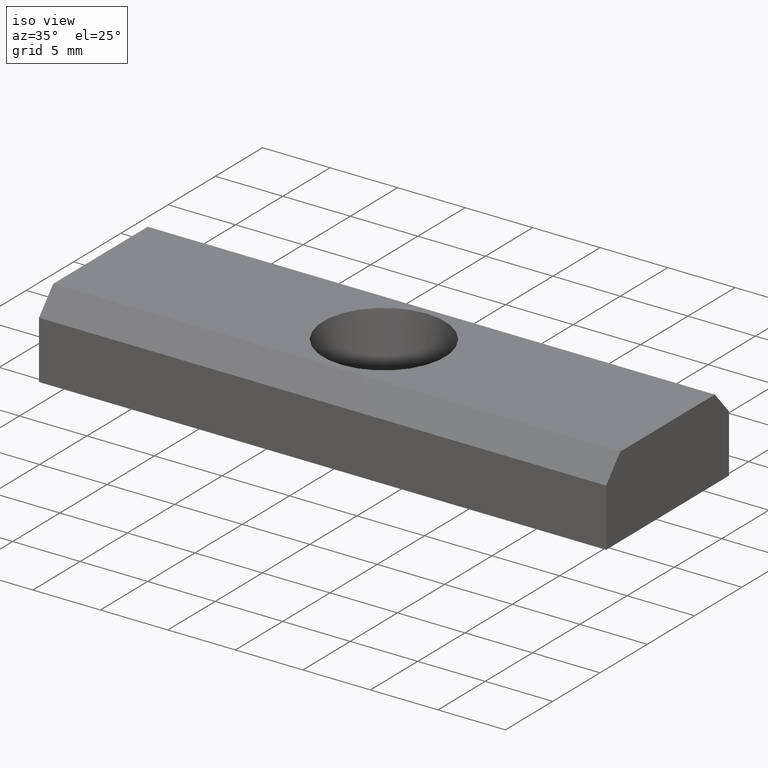
[diagram: clean part render]
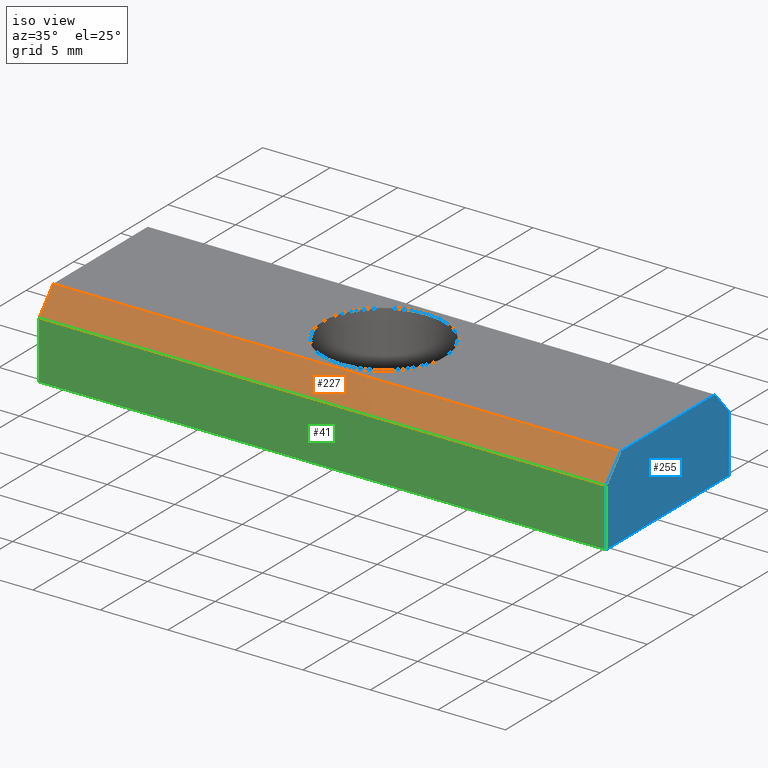
[diagram: same view with three faces highlighted in distinct colors, each labeled with its STEP entity id]
A machine part, iso view with three faces highlighted in distinct colors.
Their STEP definitions:

[orange] entity #227 — the highlighted planar face has unit normal (-0, -0.7498, 0.6616).
#7=CARTESIAN_POINT('',(-21.000000000084128,-6.499999999974079,4.299999999982900));
#8=VERTEX_POINT('',#7);
#25=CARTESIAN_POINT('',(20.999999999915872,-6.499999999974079,4.299999999982900));
#26=VERTEX_POINT('',#25);
#33=CARTESIAN_POINT('',(-21.000000000084128,-6.499999999974079,4.299999999982900));
#34=DIRECTION('',(1.0,0.0,0.0));
#35=VECTOR('',#34,42.0);
#36=LINE('',#33,#35);
#37=EDGE_CURVE('',#8,#26,#36,.T.);
#160=CARTESIAN_POINT('',(-21.000000000084128,-4.999999999979991,5.999999999975442));
#161=VERTEX_POINT('',#160);
#168=CARTESIAN_POINT('',(20.999999999915872,-4.999999999979991,5.999999999975442));
#169=VERTEX_POINT('',#168);
#170=CARTESIAN_POINT('',(-21.000000000084128,-4.999999999979991,5.999999999975442));
#171=DIRECTION('',(1.0,0.0,0.0));
#172=VECTOR('',#171,42.0);
#173=LINE('',#170,#172);
#174=EDGE_CURVE('',#161,#169,#173,.T.);
#206=CARTESIAN_POINT('',(-21.000000000084128,-4.999999999979991,5.999999999975442));
#207=DIRECTION('',(-4.051264E-017,-0.749837855365034,0.661621637086913));
#208=DIRECTION('',(4.591433E-017,-0.661621637086913,-0.749837855365034));
#209=AXIS2_PLACEMENT_3D('',#206,#207,#208);
#210=PLANE('',#209);
#211=CARTESIAN_POINT('',(-21.000000000084128,-4.999999999980083,5.999999999975621));
#212=DIRECTION('',(0.0,-0.661621637086851,-0.749837855365089));
#213=VECTOR('',#212,2.267156809741838);
#214=LINE('',#211,#213);
#215=EDGE_CURVE('',#161,#8,#214,.T.);
#216=ORIENTED_EDGE('',*,*,#215,.T.);
#217=ORIENTED_EDGE('',*,*,#37,.T.);
#218=CARTESIAN_POINT('',(20.999999999915872,-4.999999999980083,5.999999999975621));
#219=DIRECTION('',(0.0,-0.661621637086851,-0.749837855365089));
#220=VECTOR('',#219,2.267156809741838);
#221=LINE('',#218,#220);
#222=EDGE_CURVE('',#169,#26,#221,.T.);
#223=ORIENTED_EDGE('',*,*,#222,.F.);
#224=ORIENTED_EDGE('',*,*,#174,.F.);
#225=EDGE_LOOP('',(#216,#217,#223,#224));
#226=FACE_OUTER_BOUND('',#225,.T.);
#227=ADVANCED_FACE('',(#226),#210,.T.);

[blue] entity #255 — the highlighted planar face has unit normal (1, 0, 0).
#17=CARTESIAN_POINT('',(20.999999999915872,-6.499999999974079,-1.776357E-015));
#18=VERTEX_POINT('',#17);
#25=CARTESIAN_POINT('',(20.999999999915872,-6.499999999974079,4.299999999982900));
#26=VERTEX_POINT('',#25);
#27=CARTESIAN_POINT('',(20.999999999915872,-6.499999999974079,4.299999999982809));
#28=DIRECTION('',(0.0,0.0,-1.0));
#29=VECTOR('',#28,4.299999999982811);
#30=LINE('',#27,#29);
#31=EDGE_CURVE('',#26,#18,#30,.T.);
#55=CARTESIAN_POINT('',(20.999999999915872,6.499999999974079,-1.776357E-015));
#56=VERTEX_POINT('',#55);
#63=CARTESIAN_POINT('',(20.999999999915872,-6.499999999974079,-1.776357E-015));
#64=DIRECTION('',(0.0,1.0,0.0));
#65=VECTOR('',#64,12.999999999948013);
#66=LINE('',#63,#65);
#67=EDGE_CURVE('',#18,#56,#66,.T.);
#106=CARTESIAN_POINT('',(20.999999999915872,6.499999999974079,4.299999999982445));
#107=VERTEX_POINT('',#106);
#114=CARTESIAN_POINT('',(20.999999999915872,6.499999999974079,-1.776357E-015));
#115=DIRECTION('',(0.0,0.0,1.0));
#116=VECTOR('',#115,4.299999999982811);
#117=LINE('',#114,#116);
#118=EDGE_CURVE('',#56,#107,#117,.T.);
#137=CARTESIAN_POINT('',(20.999999999915872,4.999999999979991,5.999999999975897));
#138=VERTEX_POINT('',#137);
#145=CARTESIAN_POINT('',(20.999999999915872,6.499999999974079,4.299999999982445));
#146=DIRECTION('',(0.0,-0.661621637086846,0.749837855365093));
#147=VECTOR('',#146,2.267156809741826);
#148=LINE('',#145,#147);
#149=EDGE_CURVE('',#107,#138,#148,.T.);
#168=CARTESIAN_POINT('',(20.999999999915872,-4.999999999979991,5.999999999975442));
#169=VERTEX_POINT('',#168);
#176=CARTESIAN_POINT('',(20.999999999915872,4.999999999980011,5.999999999975897));
#177=DIRECTION('',(0.0,-1.0,0.0));
#178=VECTOR('',#177,9.999999999960002);
#179=LINE('',#176,#178);
#180=EDGE_CURVE('',#138,#169,#179,.T.);
#218=CARTESIAN_POINT('',(20.999999999915872,-4.999999999980083,5.999999999975621));
#219=DIRECTION('',(0.0,-0.661621637086851,-0.749837855365089));
#220=VECTOR('',#219,2.267156809741838);
#221=LINE('',#218,#220);
#222=EDGE_CURVE('',#169,#26,#221,.T.);
#242=CARTESIAN_POINT('',(20.999999999915872,-7.800004735117909,6.600004735154014));
#243=DIRECTION('',(1.0,0.0,0.0));
#244=DIRECTION('',(0.0,0.0,-1.0));
#245=AXIS2_PLACEMENT_3D('',#242,#243,#244);
#246=PLANE('',#245);
#247=ORIENTED_EDGE('',*,*,#31,.T.);
#248=ORIENTED_EDGE('',*,*,#67,.T.);
#249=ORIENTED_EDGE('',*,*,#118,.T.);
#250=ORIENTED_EDGE('',*,*,#149,.T.);
#251=ORIENTED_EDGE('',*,*,#180,.T.);
#252=ORIENTED_EDGE('',*,*,#222,.T.);
#253=EDGE_LOOP('',(#247,#248,#249,#250,#251,#252));
#254=FACE_OUTER_BOUND('',#253,.T.);
#255=ADVANCED_FACE('',(#254),#246,.T.);

[green] entity #41 — the highlighted planar face has unit normal (0, -1, 0).
#2=CARTESIAN_POINT('',(-21.000000000084128,-6.499999999974079,4.299999999982900));
#3=DIRECTION('',(0.0,-1.0,0.0));
#4=DIRECTION('',(0.0,0.0,-1.0));
#5=AXIS2_PLACEMENT_3D('',#2,#3,#4);
#6=PLANE('',#5);
#7=CARTESIAN_POINT('',(-21.000000000084128,-6.499999999974079,4.299999999982900));
#8=VERTEX_POINT('',#7);
#9=CARTESIAN_POINT('',(-21.000000000084128,-6.499999999974079,-1.776357E-015));
#10=VERTEX_POINT('',#9);
#11=CARTESIAN_POINT('',(-21.000000000084128,-6.499999999974079,4.299999999982809));
#12=DIRECTION('',(0.0,0.0,-1.0));
#13=VECTOR('',#12,4.299999999982811);
#14=LINE('',#11,#13);
#15=EDGE_CURVE('',#8,#10,#14,.T.);
#16=ORIENTED_EDGE('',*,*,#15,.T.);
#17=CARTESIAN_POINT('',(20.999999999915872,-6.499999999974079,-1.776357E-015));
#18=VERTEX_POINT('',#17);
#19=CARTESIAN_POINT('',(-21.000000000084128,-6.499999999974079,-1.776357E-015));
#20=DIRECTION('',(1.0,0.0,0.0));
#21=VECTOR('',#20,42.0);
#22=LINE('',#19,#21);
#23=EDGE_CURVE('',#10,#18,#22,.T.);
#24=ORIENTED_EDGE('',*,*,#23,.T.);
#25=CARTESIAN_POINT('',(20.999999999915872,-6.499999999974079,4.299999999982900));
#26=VERTEX_POINT('',#25);
#27=CARTESIAN_POINT('',(20.999999999915872,-6.499999999974079,4.299999999982809));
#28=DIRECTION('',(0.0,0.0,-1.0));
#29=VECTOR('',#28,4.299999999982811);
#30=LINE('',#27,#29);
#31=EDGE_CURVE('',#26,#18,#30,.T.);
#32=ORIENTED_EDGE('',*,*,#31,.F.);
#33=CARTESIAN_POINT('',(-21.000000000084128,-6.499999999974079,4.299999999982900));
#34=DIRECTION('',(1.0,0.0,0.0));
#35=VECTOR('',#34,42.0);
#36=LINE('',#33,#35);
#37=EDGE_CURVE('',#8,#26,#36,.T.);
#38=ORIENTED_EDGE('',*,*,#37,.F.);
#39=EDGE_LOOP('',(#16,#24,#32,#38));
#40=FACE_OUTER_BOUND('',#39,.T.);
#41=ADVANCED_FACE('',(#40),#6,.T.);